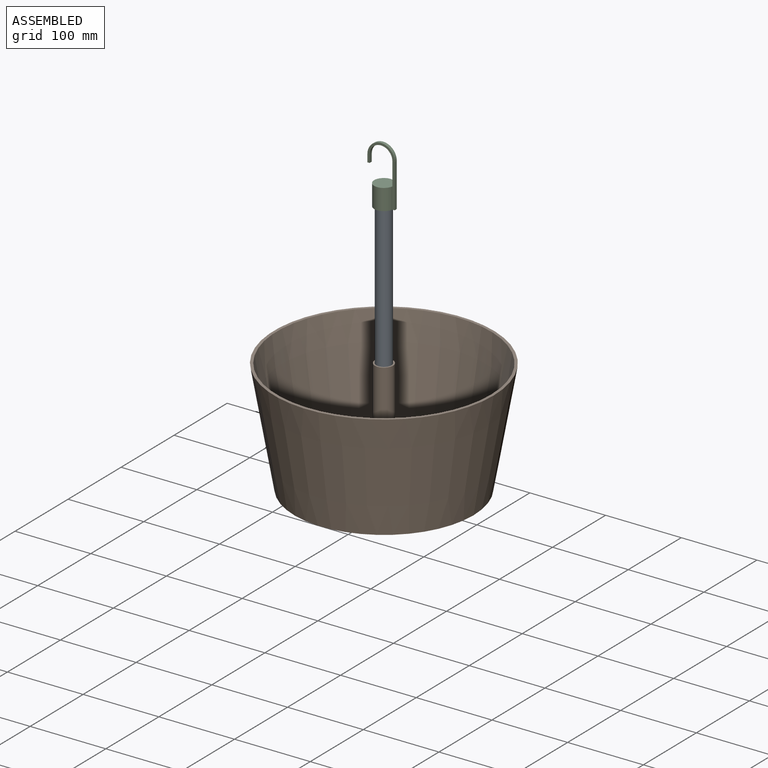
[diagram: assembled view]
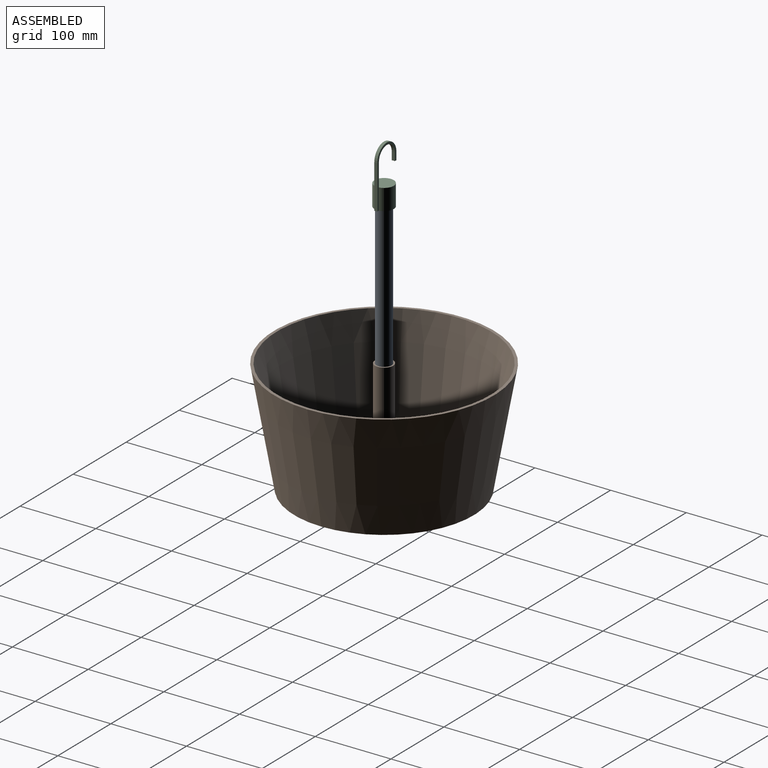
[diagram: assembled view, second angle]
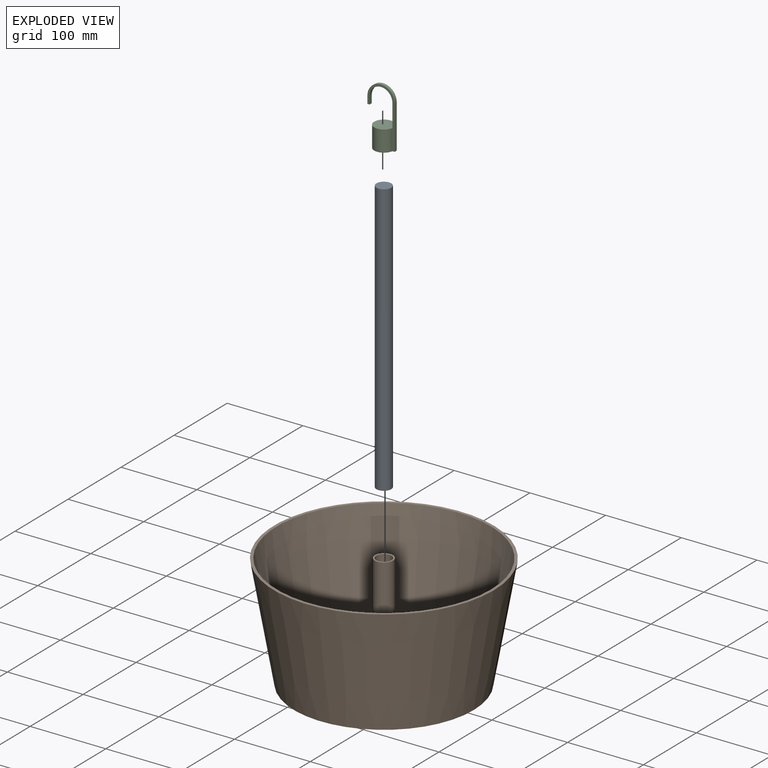
[diagram: exploded view]
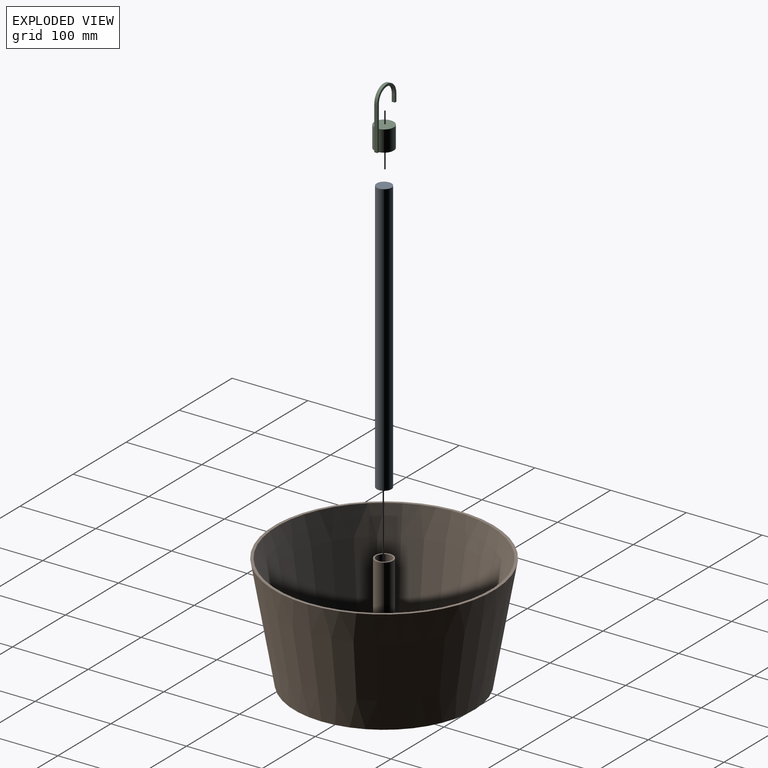
[diagram: exploded view, second angle]
ASSEMBLY  parts=3 mates=2
PART A: 3 faces, bbox 19.6x19.6x360 mm
  f0: cylinder r=9.82mm len=360mm, axis (0,0,-1), area 22210.7mm2, adj f1,f2
  f1: plane 19.64x19.64mm, normal (0,0,1), area 302.9mm2, adj f0
  f2: plane 19.64x19.64mm, normal (0,0,-1), area 302.9mm2, adj f0
PART B: 9 faces, bbox 290x290x150 mm
  f0: plane 237.1x237.1mm, normal (0,0,-1), area 44153mm2, adj f8
  f1: plane 20x20mm, normal (0,0,1), area 314.2mm2, adj f2
  f2: cylinder r=10mm len=148mm, axis (0,0,1), area 9299.1mm2, adj f1,f3
  f3: plane 24x24mm, normal (0,0,1), area 138.2mm2, adj f2,f4
  f4: cylinder r=12mm len=148mm, axis (0,0,1), area 11158.9mm2, adj f3,f5
  f5: plane 230.56x230.56mm, normal (0,0,1), area 41296.7mm2, adj f4,f6
  f6: cone r=141.37mm half-angle=10deg, axis (0,0,1), area 121173.5mm2, adj f5,f7
  f7: plane 290x290mm, normal (0,0,1), area 3261.3mm2, adj f6,f8
  f8: cone r=118.55mm half-angle=10deg, axis (0,0,1), area 126111.4mm2, adj f0,f7
PART C: 12 faces, bbox 36x25.6x75.7 mm
  f0: plane 25.57x25.57mm, normal (0,0,1), area 513.5mm2, adj f1,f7
  f1: cylinder r=12.78mm len=27.7mm, axis (0,0,-1), area 2113.9mm2, adj f0,f2,f3,f4
  f2: plane 28.41x25.57mm, normal (0,0,-1), area 525.1mm2, adj f1,f3,f4,f5
  f3: plane 75.7x36mm, normal (0,1,0), area 358.6mm2, adj f1,f2,f5,f6,f7,f8,f9,f10
  f4: plane 75.7x36mm, normal (0,-1,0), area 358.6mm2, adj f1,f2,f5,f6,f7,f8,f9,f10
  f5: plane 57.7x4mm, normal (1,0,0), area 230.8mm2, adj f2,f3,f4,f9
  f6: plane 4x3mm, normal (0,0,-1), area 11.6mm2, adj f3,f4,f10,f11
  f7: cylinder r=12.78mm len=30mm, axis (0,0,1), area 120.5mm2, adj f0,f3,f4,f8
  f8: torus R=2.37mm, axis (0,-1,0), area 190.6mm2, adj f3,f4,f7,f10
  f9: cylinder r=18mm len=36mm, axis (0,-1,0), area 226.2mm2, adj f3,f4,f5,f11
  f10: cylinder r=12.78mm len=10mm, axis (0,0,-1), area 40.2mm2, adj f3,f4,f6,f8
  f11: plane 10x4mm, normal (-1,0,0), area 40mm2, adj f3,f4,f6,f9
PLACE A t=(-38.52,94.01,5.16)mm
PLACE B t=(-38.52,94.01,13.16)mm
PLACE C t=(-38.52,94.01,5.46)mm
MATE fastened B.f2 <-> A.f0  axis (0,0,1) through (-38.52,94.01,15.16)mm
MATE fastened A.f0 <-> C.f1  axis (0,0,-1) through (-38.52,94.01,375.16)mm
